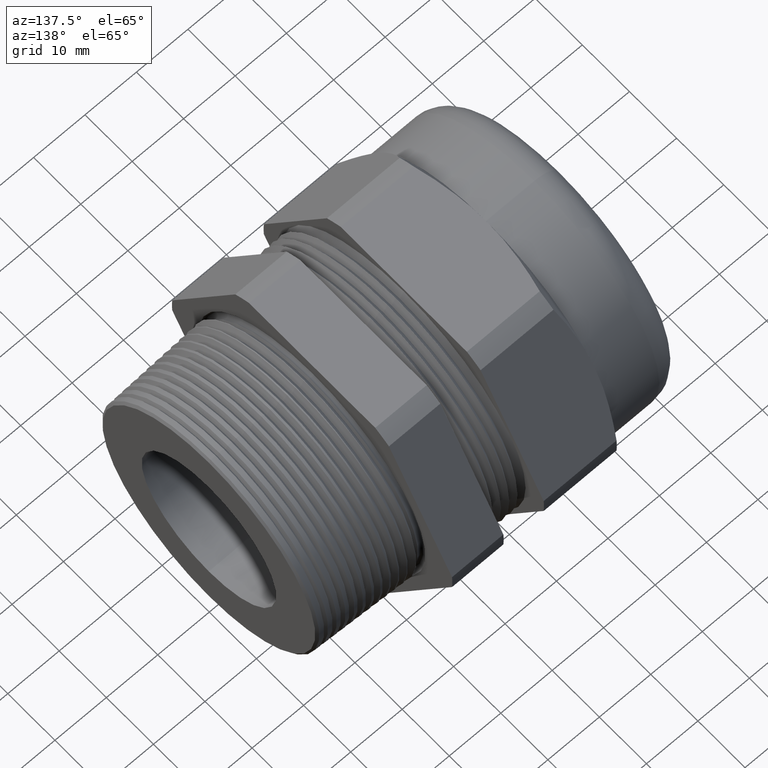
[diagram: clean part render]
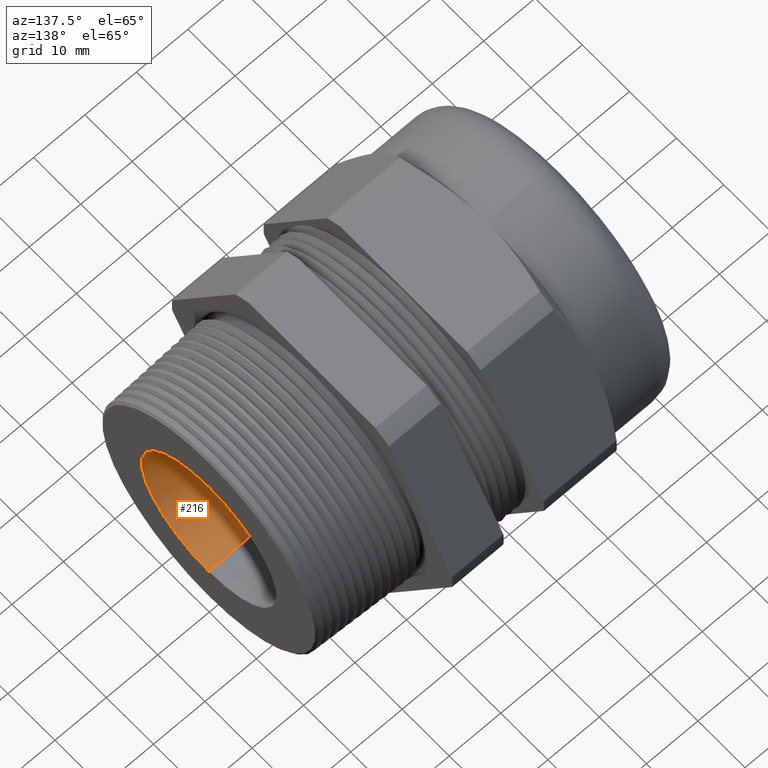
[diagram: same view with one face highlighted and labeled with its STEP entity id]
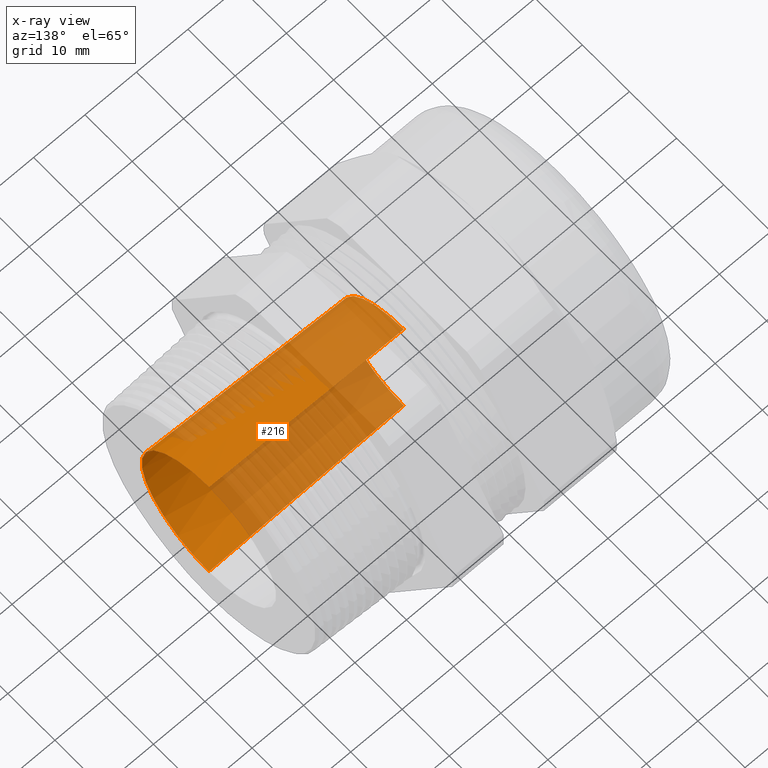
[diagram: x-ray of the same camera — body ghosted, the highlighted face saturated]
A machine part, auxiliary view. The second image highlights one B-rep face of the part: STEP entity #216.
The next image is the same camera in x-ray: the body ghosted, the highlighted face saturated — about 63% of this face is hidden behind the body in this view.
In plain terms, the highlighted conical surface has half-angle 2 deg.
Its self-contained STEP definition (entity closure, byte-faithful):
#216 = ADVANCED_FACE ( 'NONE', ( #756 ), #755, .F. ) ;
#217 = EDGE_LOOP ( 'NONE', ( #218, #222, #225, #228 ) ) ;
#218 = ORIENTED_EDGE ( 'NONE', *, *, #219, .T. ) ;
#219 = EDGE_CURVE ( 'NONE', #220, #221, #754, .T. ) ;
#220 = VERTEX_POINT ( 'NONE', #744 ) ;
#221 = VERTEX_POINT ( 'NONE', #743 ) ;
#222 = ORIENTED_EDGE ( 'NONE', *, *, #223, .T. ) ;
#223 = EDGE_CURVE ( 'NONE', #221, #224, #742, .T. ) ;
#224 = VERTEX_POINT ( 'NONE', #738 ) ;
#225 = ORIENTED_EDGE ( 'NONE', *, *, #226, .F. ) ;
#226 = EDGE_CURVE ( 'NONE', #227, #224, #737, .T. ) ;
#227 = VERTEX_POINT ( 'NONE', #732 ) ;
#228 = ORIENTED_EDGE ( 'NONE', *, *, #229, .F. ) ;
#229 = EDGE_CURVE ( 'NONE', #220, #227, #731, .T. ) ;
#728 = DIRECTION ( 'NONE',  ( 0.9993908270190957600, 0.0000000000000000000, -0.03489949670250169800 ) ) ;
#729 = VECTOR ( 'NONE', #728, 39.37007874015748900 ) ;
#730 = CARTESIAN_POINT ( 'NONE',  ( -0.7012500000000001500, 0.0000000000000000000, -0.5100000000000000100 ) ) ;
#731 = LINE ( 'NONE', #730, #729 ) ;
#732 = CARTESIAN_POINT ( 'NONE',  ( 0.7899999999999998100, 0.0000000000000000000, -0.5620755975045699200 ) ) ;
#733 = DIRECTION ( 'NONE',  ( 0.0000000000000000000, 0.0000000000000000000, 1.000000000000000000 ) ) ;
#734 = DIRECTION ( 'NONE',  ( -1.000000000000000000, 0.0000000000000000000, 0.0000000000000000000 ) ) ;
#735 = CARTESIAN_POINT ( 'NONE',  ( 0.7899999999999998100, 0.0000000000000000000, 0.0000000000000000000 ) ) ;
#736 = AXIS2_PLACEMENT_3D ( 'NONE', #735, #734, #733 ) ;
#737 = CIRCLE ( 'NONE', #736, 0.5620755975045699200 ) ;
#738 = CARTESIAN_POINT ( 'NONE',  ( 0.7899999999999998100, 6.883440813628075700E-017, 0.5620755975045699200 ) ) ;
#739 = DIRECTION ( 'NONE',  ( 0.9993908270190957600, 4.273955692857231200E-018, 0.03489949670250169800 ) ) ;
#740 = VECTOR ( 'NONE', #739, 39.37007874015748900 ) ;
#741 = CARTESIAN_POINT ( 'NONE',  ( -0.7012500000000001500, 6.245698675651502300E-017, 0.5100000000000000100 ) ) ;
#742 = LINE ( 'NONE', #741, #740 ) ;
#743 = CARTESIAN_POINT ( 'NONE',  ( -0.7012500000000001500, 0.0000000000000000000, 0.5100000000000000100 ) ) ;
#744 = CARTESIAN_POINT ( 'NONE',  ( -0.7012500000000001500, 6.245698675651502300E-017, -0.5100000000000000100 ) ) ;
#745 = DIRECTION ( 'NONE',  ( 0.0000000000000000000, 0.0000000000000000000, 1.000000000000000000 ) ) ;
#746 = DIRECTION ( 'NONE',  ( -1.000000000000000000, 0.0000000000000000000, 0.0000000000000000000 ) ) ;
#747 = CARTESIAN_POINT ( 'NONE',  ( -0.7012500000000001500, 0.0000000000000000000, 0.0000000000000000000 ) ) ;
#748 = AXIS2_PLACEMENT_3D ( 'NONE', #747, #746, #745 ) ;
#749 = DIRECTION ( 'NONE',  ( 0.0000000000000000000, 0.0000000000000000000, -1.000000000000000000 ) ) ;
#751 = DIRECTION ( 'NONE',  ( 1.000000000000000000, 0.0000000000000000000, 0.0000000000000000000 ) ) ;
#752 = CARTESIAN_POINT ( 'NONE',  ( -0.7012500000000001500, 0.0000000000000000000, 0.0000000000000000000 ) ) ;
#753 = AXIS2_PLACEMENT_3D ( 'NONE', #752, #751, #749 ) ;
#754 = CIRCLE ( 'NONE', #748, 0.5100000000000000100 ) ;
#755 = CONICAL_SURFACE ( 'NONE', #753, 0.5100000000000000100, 0.03490658503988732000 ) ;
#756 = FACE_OUTER_BOUND ( 'NONE', #217, .T. ) ;